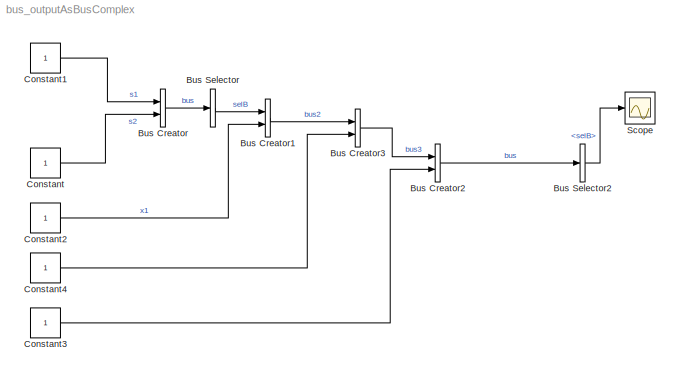
MODEL bus_outputAsBusComplex
KIND model
BLOCK [BusCreator] Bus Creator
  DisplayOption = bar
  Inputs = 2
  Ports = [2, 1]
  SID = 1
BLOCK [BusCreator] Bus Creator1
  DisplayOption = bar
  Inputs = 2
  Ports = [2, 1]
  SID = 7
BLOCK [BusCreator] Bus Creator2
  DisplayOption = bar
  Inputs = 2
  Ports = [2, 1]
  SID = 10
BLOCK [BusCreator] Bus Creator3
  DisplayOption = bar
  Inputs = 2
  Ports = [2, 1]
  SID = 12
BLOCK [BusSelector] Bus Selector
  OutputAsBus = on
  OutputSignals = s1,s2
  Ports = [1, 1]
  SID = 2
BLOCK [BusSelector] Bus Selector2
  OutputSignals = bus3.bus2.selB
  Ports = [1, 1]
  SID = 11
BLOCK [Constant] Constant
  SID = 4
BLOCK [Constant] Constant1
  SID = 5
BLOCK [Constant] Constant2
  SID = 8
BLOCK [Constant] Constant3
  SID = 9
BLOCK [Constant] Constant4
  SID = 13
BLOCK [Scope] Scope
  DataFormat = StructureWithTime
  Floating = off
  NumInputPorts = 1
  Ports = [1]
  SID = 6
  SampleTime = 0
  ShowLegends = off
LINE Bus Creator1:1 -> Bus Creator3:1
LINE Bus Creator2:1 -> Bus Selector2:1
LINE Bus Creator3:1 -> Bus Creator2:1
LINE Bus Creator:1 -> Bus Selector:1
LINE Bus Selector2:1 -> Scope:1
LINE Bus Selector:1 -> Bus Creator1:1
LINE Constant1:1 -> Bus Creator:1
LINE Constant2:1 -> Bus Creator1:2
LINE Constant3:1 -> Bus Creator2:2
LINE Constant4:1 -> Bus Creator3:2
LINE Constant:1 -> Bus Creator:2
